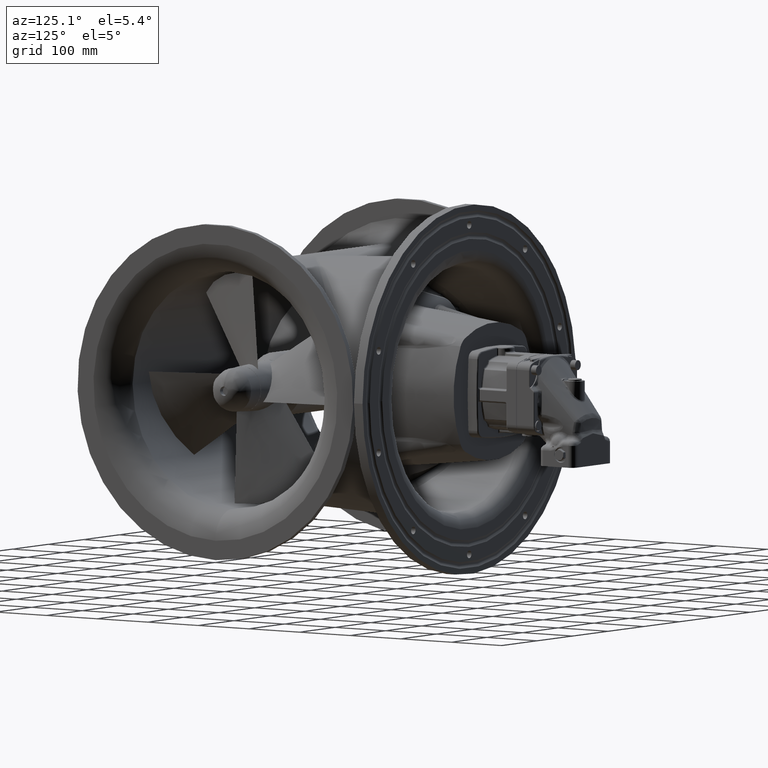
[diagram: clean part render]
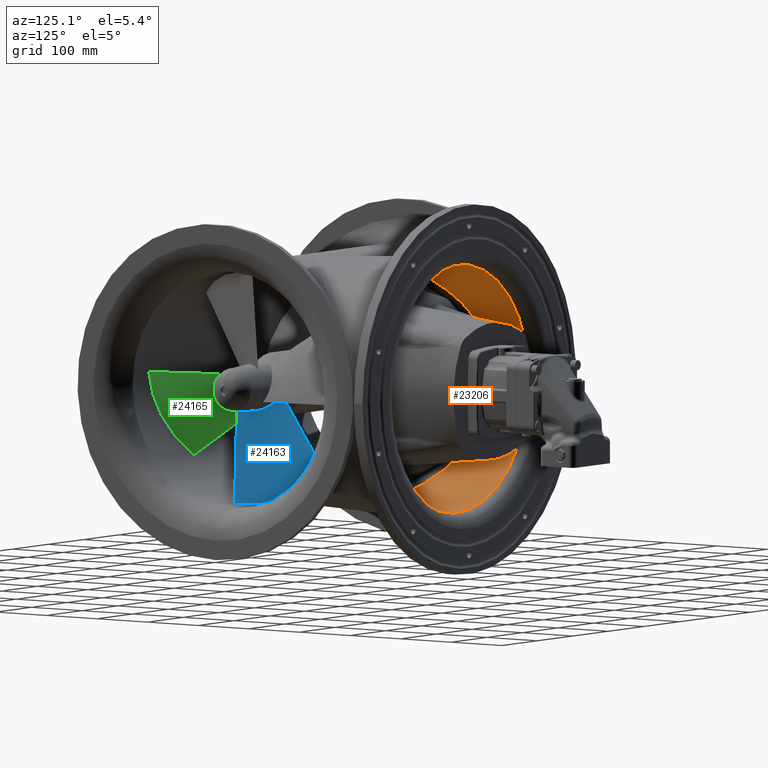
[diagram: same view with three faces highlighted in distinct colors, each labeled with its STEP entity id]
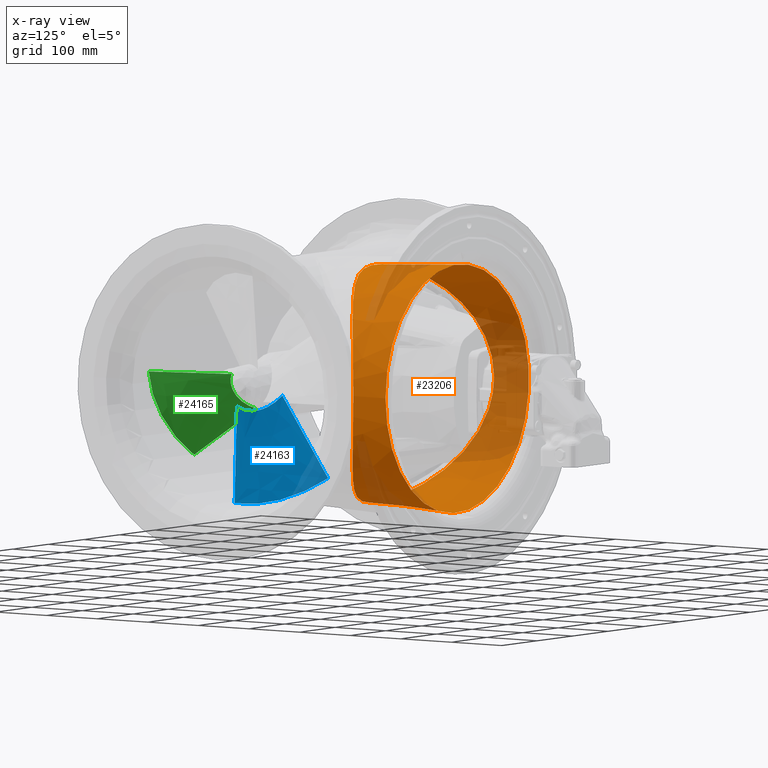
[diagram: x-ray of the same camera — body ghosted, the three highlighted faces saturated]
A machine part, auxiliary view with three faces highlighted in distinct colors.
The next image is the same camera in x-ray (body ghosted, the three faces saturated) — at least one of them is partly hidden behind the body in this view.
Their STEP definitions:

[orange] entity #23206 — the highlighted conical surface has half-angle 3 deg.
#540=CONICAL_SURFACE('',#24622,191.811582848917,3.00000000000001);
#1286=CIRCLE('',#24623,201.572524618308);
#4582=FACE_BOUND('',#6198,.T.);
#4782=FACE_OUTER_BOUND('',#6197,.T.);
#6197=EDGE_LOOP('',(#14754));
#6198=EDGE_LOOP('',(#14755));
#7785=B_SPLINE_CURVE_WITH_KNOTS('',3,(#32899,#32900,#32901,#32902,#32903,
#32904,#32905,#32906,#32907,#32908,#32909,#32910,#32911,#32912,#32913,#32914,
#32915,#32916,#32917,#32918,#32919,#32920,#32921,#32922,#32923,#32924,#32925,
#32926,#32927,#32928,#32929,#32930,#32931,#32932,#32933,#32934,#32935,#32936,
#32937,#32938,#32939,#32940,#32941,#32942,#32943,#32944,#32945,#32946,#32947,
#32948,#32949,#32950,#32951,#32952,#32953,#32954,#32955,#32956,#32957,#32958,
#32959,#32960,#32961,#32962,#32963,#32964,#32965,#32966,#32967,#32968,#32969,
#32970,#32971,#32972,#32973,#32974,#32975,#32976,#32977,#32978),
 .UNSPECIFIED.,.T.,.F.,(4,3,1,1,1,1,1,1,1,1,1,1,1,1,1,1,1,1,1,1,1,1,1,1,
1,1,1,1,1,1,1,1,1,1,1,1,1,1,1,1,1,1,1,1,1,1,1,1,1,1,1,1,1,1,1,1,1,1,1,1,
1,1,1,1,1,1,1,1,1,1,1,1,1,1,1,4),(0.,7.43685162452046E-7,0.0357150294075748,
0.044643600838178,0.0625007436993842,0.0714293151299872,0.0892864579911935,
0.107143600852399,0.111607886567701,0.125000743713606,0.142857886574812,
0.160715029436018,0.165179315151319,0.178572172297224,0.19642931515843,
0.205357886589034,0.207590029446684,0.214286458019637,0.232143600880843,
0.250000743742049,0.254465029457351,0.267857886603255,0.28125074374916,
0.285715029464461,0.309524553279403,0.318453124710006,0.333334077094344,
0.357143600909286,0.380953124724228,0.398810267585434,0.404762648539169,
0.41666741044664,0.428572172354111,0.434524553307846,0.452381696169053,
0.476191219983994,0.500000743798936,0.505953124752671,0.523810267613877,
0.539683283490505,0.563492807305447,0.57142931524376,0.591270585089545,
0.603175346997016,0.61111185493533,0.630953124781114,0.633929315257982,
0.642857886688585,0.666667410503527,0.678572172410998,0.687500743841601,
0.690476934318468,0.71428645813341,0.726191220040881,0.735119791471484,
0.738095981948351,0.750000743855822,0.761905505763293,0.76587375973245,
0.777778521639921,0.793651537516549,0.809524553393176,0.819445188316069,
0.825397569269804,0.841270585146432,0.857143601023059,0.861607886738361,
0.875000743884265,0.892857886745472,0.910715029606678,0.91517931532198,
0.928572172467884,0.946429315329091,0.964286458190297,0.9732150296209,1.),
 .UNSPECIFIED.);
#9110=VERTEX_POINT('',#32897);
#9111=VERTEX_POINT('',#32980);
#11299=EDGE_CURVE('',#9110,#9110,#7785,.T.);
#11300=EDGE_CURVE('',#9111,#9111,#1286,.T.);
#14754=ORIENTED_EDGE('',*,*,#11300,.F.);
#14755=ORIENTED_EDGE('',*,*,#11299,.F.);
#23206=ADVANCED_FACE('',(#4782,#4582),#540,.F.);
#24622=AXIS2_PLACEMENT_3D('',#32979,#26287,#26288);
#24623=AXIS2_PLACEMENT_3D('',#32981,#26289,#26290);
#26287=DIRECTION('center_axis',(-2.75075785414576E-15,1.,-2.09740053427586E-14));
#26288=DIRECTION('ref_axis',(1.,2.75075785414574E-15,-9.97823151778132E-16));
#26289=DIRECTION('center_axis',(2.75075785414576E-15,-1.,2.09740053427586E-14));
#26290=DIRECTION('ref_axis',(-1.,-2.75075785414574E-15,9.97823151778132E-16));
#32897=CARTESIAN_POINT('',(-817.642985206559,969.664118161604,286.230109982839));
#32899=CARTESIAN_POINT('Ctrl Pts',(-817.643844682859,969.664980324106,286.230111064114));
#32900=CARTESIAN_POINT('Ctrl Pts',(-817.643844473404,969.664980182692,286.230434766833));
#32901=CARTESIAN_POINT('Ctrl Pts',(-817.643844263211,969.664980040703,286.230758321049));
#32902=CARTESIAN_POINT('Ctrl Pts',(-817.643844052183,969.664979898074,286.231081875258));
#32903=CARTESIAN_POINT('Ctrl Pts',(-817.633709796106,969.658130348677,301.769253215617));
#32904=CARTESIAN_POINT('Ctrl Pts',(-815.20589328817,967.787715932101,321.158623087767));
#32905=CARTESIAN_POINT('Ctrl Pts',(-807.958859406134,962.300050276065,346.828023973494));
#32906=CARTESIAN_POINT('Ctrl Pts',(-802.633732048341,958.306054861071,360.801804739916));
#32907=CARTESIAN_POINT('Ctrl Pts',(-794.56969156171,952.347160960633,377.437296181785));
#32908=CARTESIAN_POINT('Ctrl Pts',(-785.283482143477,945.597138649173,392.993873515186));
#32909=CARTESIAN_POINT('Ctrl Pts',(-775.629738563046,938.791770010736,405.697136165923));
#32910=CARTESIAN_POINT('Ctrl Pts',(-766.366689567454,932.434825088465,416.308136549061));
#32911=CARTESIAN_POINT('Ctrl Pts',(-756.583187987238,925.868043859368,426.34071759135));
#32912=CARTESIAN_POINT('Ctrl Pts',(-742.061940164068,916.585702807428,438.667284938074));
#32913=CARTESIAN_POINT('Ctrl Pts',(-729.220800372485,908.982641043459,447.417231452489));
#32914=CARTESIAN_POINT('Ctrl Pts',(-717.177493672349,902.323395311271,454.50563443551));
#32915=CARTESIAN_POINT('Ctrl Pts',(-704.706445702908,895.831622607145,460.979050541048));
#32916=CARTESIAN_POINT('Ctrl Pts',(-689.812049234712,889.094956845852,467.033824201625));
#32917=CARTESIAN_POINT('Ctrl Pts',(-678.555195212731,884.863333117694,470.578394729946));
#32918=CARTESIAN_POINT('Ctrl Pts',(-671.467549321455,882.450832443353,472.548500787156));
#32919=CARTESIAN_POINT('Ctrl Pts',(-660.638257117636,879.077855095639,475.242985786774));
#32920=CARTESIAN_POINT('Ctrl Pts',(-642.827816410894,875.039117782348,478.282291958186));
#32921=CARTESIAN_POINT('Ctrl Pts',(-625.335768645027,873.663873336734,479.273882614572));
#32922=CARTESIAN_POINT('Ctrl Pts',(-609.769859913971,873.975378249653,479.048775962299));
#32923=CARTESIAN_POINT('Ctrl Pts',(-596.237274161791,875.291307659088,478.089208969909));
#32924=CARTESIAN_POINT('Ctrl Pts',(-583.030427720324,878.041010614917,476.022589592555));
#32925=CARTESIAN_POINT('Ctrl Pts',(-565.956968820594,882.698062326797,472.385444305861));
#32926=CARTESIAN_POINT('Ctrl Pts',(-551.372771790419,888.15860767349,467.905756807229));
#32927=CARTESIAN_POINT('Ctrl Pts',(-533.910852120543,896.134488382909,460.627875003736));
#32928=CARTESIAN_POINT('Ctrl Pts',(-517.187828881188,904.696619392375,452.232059295748));
#32929=CARTESIAN_POINT('Ctrl Pts',(-496.818080324273,916.617634993516,438.860859476696));
#32930=CARTESIAN_POINT('Ctrl Pts',(-477.797459389072,928.938074665806,422.130233627593));
#32931=CARTESIAN_POINT('Ctrl Pts',(-465.330665199626,937.494297195138,408.023778896989));
#32932=CARTESIAN_POINT('Ctrl Pts',(-456.716557521773,943.554836458041,396.666926650424));
#32933=CARTESIAN_POINT('Ctrl Pts',(-450.011286220799,948.354796715588,386.728983907229));
#32934=CARTESIAN_POINT('Ctrl Pts',(-444.021590381058,952.723578781273,376.217810270847));
#32935=CARTESIAN_POINT('Ctrl Pts',(-437.487271861231,957.541673057664,363.05934091721));
#32936=CARTESIAN_POINT('Ctrl Pts',(-429.971189098497,963.165560825805,344.438072919465));
#32937=CARTESIAN_POINT('Ctrl Pts',(-423.156089685744,968.35384896594,317.155209162421));
#32938=CARTESIAN_POINT('Ctrl Pts',(-421.237109067417,969.827184533132,293.852611333595));
#32939=CARTESIAN_POINT('Ctrl Pts',(-421.66148870774,969.501695484769,273.144680356409));
#32940=CARTESIAN_POINT('Ctrl Pts',(-423.42793124294,968.147867208054,255.961888753281));
#32941=CARTESIAN_POINT('Ctrl Pts',(-428.760082136487,964.08801254042,231.81147130288));
#32942=CARTESIAN_POINT('Ctrl Pts',(-435.678380679442,958.881225657245,212.938407477312));
#32943=CARTESIAN_POINT('Ctrl Pts',(-444.988754504355,952.005146534922,193.842358979803));
#32944=CARTESIAN_POINT('Ctrl Pts',(-453.316493525178,945.95596597474,180.055658676926));
#32945=CARTESIAN_POINT('Ctrl Pts',(-462.816657234918,939.25219329027,167.361263337286));
#32946=CARTESIAN_POINT('Ctrl Pts',(-472.948491499581,932.25948342167,155.425812976284));
#32947=CARTESIAN_POINT('Ctrl Pts',(-481.426320012417,926.599737960872,147.001877748782));
#32948=CARTESIAN_POINT('Ctrl Pts',(-490.763455426936,920.612893385691,138.905589423135));
#32949=CARTESIAN_POINT('Ctrl Pts',(-501.581289464626,913.830693471057,130.187886002035));
#32950=CARTESIAN_POINT('Ctrl Pts',(-516.147462385467,905.303118869695,120.624930451935));
#32951=CARTESIAN_POINT('Ctrl Pts',(-531.756087289806,897.225972352331,112.605848868821));
#32952=CARTESIAN_POINT('Ctrl Pts',(-540.386617938083,893.159542880494,108.827341735103));
#32953=CARTESIAN_POINT('Ctrl Pts',(-553.65837477105,887.302553040922,103.568723598515));
#32954=CARTESIAN_POINT('Ctrl Pts',(-568.929869970385,881.582538107448,98.8761642218715));
#32955=CARTESIAN_POINT('Ctrl Pts',(-587.493234825367,877.003246818053,95.3691919006624));
#32956=CARTESIAN_POINT('Ctrl Pts',(-597.643253154297,875.333071495202,94.1258727459474));
#32957=CARTESIAN_POINT('Ctrl Pts',(-607.913537997537,874.154476963815,93.2577800113576));
#32958=CARTESIAN_POINT('Ctrl Pts',(-619.579852023439,873.550442915569,92.8199338794796));
#32959=CARTESIAN_POINT('Ctrl Pts',(-631.679584340041,874.182332380331,93.2778106646304));
#32960=CARTESIAN_POINT('Ctrl Pts',(-643.64914854139,875.611856638499,94.3319618720475));
#32961=CARTESIAN_POINT('Ctrl Pts',(-657.125074690903,878.11315119999,96.2000365838047));
#32962=CARTESIAN_POINT('Ctrl Pts',(-674.930353892492,883.314343521894,100.266663119144));
#32963=CARTESIAN_POINT('Ctrl Pts',(-690.963382952051,889.617040853827,105.593325058543));
#32964=CARTESIAN_POINT('Ctrl Pts',(-702.611662374716,894.966501384886,110.485035175207));
#32965=CARTESIAN_POINT('Ctrl Pts',(-713.927295860927,900.568537828434,115.875758124346));
#32966=CARTESIAN_POINT('Ctrl Pts',(-726.808626285909,907.545867347812,123.081513032109));
#32967=CARTESIAN_POINT('Ctrl Pts',(-738.322592699047,914.388108483723,131.02068009718));
#32968=CARTESIAN_POINT('Ctrl Pts',(-748.61463336562,920.774324328005,139.071702811111));
#32969=CARTESIAN_POINT('Ctrl Pts',(-759.113109382784,927.529374842957,148.226753963432));
#32970=CARTESIAN_POINT('Ctrl Pts',(-772.425295666602,936.532124477699,162.252789384164));
#32971=CARTESIAN_POINT('Ctrl Pts',(-782.120839703791,943.3678231429,175.025821203128));
#32972=CARTESIAN_POINT('Ctrl Pts',(-789.964352243331,948.999660548333,187.025064016432));
#32973=CARTESIAN_POINT('Ctrl Pts',(-797.232707753047,954.29616258287,199.622050649147));
#32974=CARTESIAN_POINT('Ctrl Pts',(-805.675968206962,960.576246659162,218.402847837027));
#32975=CARTESIAN_POINT('Ctrl Pts',(-811.357575164055,964.869839434137,236.562646732096));
#32976=CARTESIAN_POINT('Ctrl Pts',(-816.218336782733,968.569356226686,259.027712656891));
#32977=CARTESIAN_POINT('Ctrl Pts',(-817.651385044264,969.670071204949,274.576805594849));
#32978=CARTESIAN_POINT('Ctrl Pts',(-817.643844682859,969.664980324106,286.230111064114));
#32979=CARTESIAN_POINT('Origin',(-619.546366145328,849.750030494023,286.088403940123));
#32980=CARTESIAN_POINT('',(-417.97384152702,1035.99989459673,286.088403940119));
#32981=CARTESIAN_POINT('Origin',(-619.546366145328,1035.99989459672,286.088403940119));

[blue] entity #24163 — the highlighted face is a freeform B-spline surface patch.
#685=B_SPLINE_SURFACE_WITH_KNOTS('',3,3,((#67933,#67934,#67935,#67936),
(#67937,#67938,#67939,#67940),(#67941,#67942,#67943,#67944),(#67945,#67946,
#67947,#67948),(#67949,#67950,#67951,#67952)),.UNSPECIFIED.,.F.,.F.,.F.,
(4,1,4),(4,4),(0.,0.428571428571429,1.),(0.215535311701015,0.95108317766332),
 .UNSPECIFIED.);
#5739=FACE_OUTER_BOUND('',#7274,.T.);
#7274=EDGE_LOOP('',(#19249,#19250,#19251,#19252));
#8761=B_SPLINE_CURVE_WITH_KNOTS('',3,(#67858,#67859,#67860,#67861,#67862,
#67863,#67864,#67865,#67866,#67867),.UNSPECIFIED.,.F.,.F.,(4,2,2,2,4),(-16.3493618689349,
-10.7212147444645,-8.17473811777873,-4.9042900668038,0.),.UNSPECIFIED.);
#8767=B_SPLINE_CURVE_WITH_KNOTS('',3,(#67954,#67955,#67956,#67957),
 .UNSPECIFIED.,.F.,.F.,(4,4),(0.217337775537616,0.82039902234064),
 .UNSPECIFIED.);
#8768=B_SPLINE_CURVE_WITH_KNOTS('',3,(#67959,#67960,#67961,#67962,#67963,
#67964,#67965,#67966,#67967,#67968,#67969,#67970),.UNSPECIFIED.,.F.,.F.,
(4,2,2,2,2,4),(-8.36856113491337,-6.27827251098502,-4.18522516089081,-2.22822413412282,
-1.10880428487229,0.),.UNSPECIFIED.);
#8769=B_SPLINE_CURVE_WITH_KNOTS('',3,(#67971,#67972,#67973,#67974),
 .UNSPECIFIED.,.F.,.F.,(4,4),(0.215535311701024,0.828324193697466),
 .UNSPECIFIED.);
#10491=VERTEX_POINT('',#67846);
#10492=VERTEX_POINT('',#67847);
#10497=VERTEX_POINT('',#67953);
#10498=VERTEX_POINT('',#67958);
#13545=EDGE_CURVE('',#10492,#10491,#8761,.T.);
#13551=EDGE_CURVE('',#10497,#10492,#8767,.T.);
#13552=EDGE_CURVE('',#10497,#10498,#8768,.T.);
#13553=EDGE_CURVE('',#10498,#10491,#8769,.T.);
#19249=ORIENTED_EDGE('',*,*,#13545,.F.);
#19250=ORIENTED_EDGE('',*,*,#13551,.F.);
#19251=ORIENTED_EDGE('',*,*,#13552,.T.);
#19252=ORIENTED_EDGE('',*,*,#13553,.T.);
#24163=ADVANCED_FACE('',(#5739),#685,.T.);
#67846=CARTESIAN_POINT('',(-423.51643087486,733.7071333461,98.9125769727102));
#67847=CARTESIAN_POINT('',(-489.946725566427,871.819283637717,141.807246706798));
#67858=CARTESIAN_POINT('Ctrl Pts',(-489.946725566427,871.819283637716,141.807246706798));
#67859=CARTESIAN_POINT('Ctrl Pts',(-479.439231465051,859.889433830214,131.841438035652));
#67860=CARTESIAN_POINT('Ctrl Pts',(-469.998474413698,846.220111269411,122.956716477875));
#67861=CARTESIAN_POINT('Ctrl Pts',(-457.562934255208,824.237680965381,112.652395209093));
#67862=CARTESIAN_POINT('Ctrl Pts',(-453.88588904403,817.113041284964,109.817053026394));
#67863=CARTESIAN_POINT('Ctrl Pts',(-445.930665670431,800.28686595135,104.312368622695));
#67864=CARTESIAN_POINT('Ctrl Pts',(-441.791587787326,790.456329810536,101.928703624345));
#67865=CARTESIAN_POINT('Ctrl Pts',(-432.315822506446,765.189703467371,97.9761079528533));
#67866=CARTESIAN_POINT('Ctrl Pts',(-427.443934927138,749.506398168218,97.4283041266339));
#67867=CARTESIAN_POINT('Ctrl Pts',(-423.51643087486,733.7071333461,98.9125769727105));
#67933=CARTESIAN_POINT('Ctrl Pts',(-479.308207211856,788.664153539926,272.641411837788));
#67934=CARTESIAN_POINT('Ctrl Pts',(-482.634700860429,814.826788882129,231.194886438855));
#67935=CARTESIAN_POINT('Ctrl Pts',(-490.077751864443,872.49237141663,141.363719456502));
#67936=CARTESIAN_POINT('Ctrl Pts',(-490.993069025535,880.202897630307,128.257357953734));
#67937=CARTESIAN_POINT('Ctrl Pts',(-470.906524474224,782.128401093587,270.676699124686));
#67938=CARTESIAN_POINT('Ctrl Pts',(-472.840794204752,804.709856948901,228.153635266937));
#67939=CARTESIAN_POINT('Ctrl Pts',(-477.168946856875,854.363031462063,135.913858100625));
#67940=CARTESIAN_POINT('Ctrl Pts',(-477.701180032577,861.088161223018,122.511276544542));
#67941=CARTESIAN_POINT('Ctrl Pts',(-452.988015053744,764.7254280547,265.445190946248));
#67942=CARTESIAN_POINT('Ctrl Pts',(-452.133586896028,778.963971603625,220.414164002805));
#67943=CARTESIAN_POINT('Ctrl Pts',(-450.222597726274,809.948484223265,122.562399898502));
#67944=CARTESIAN_POINT('Ctrl Pts',(-449.987493487907,814.377980318784,108.469727846468));
#67945=CARTESIAN_POINT('Ctrl Pts',(-440.148090152414,743.26629982072,258.994361848981));
#67946=CARTESIAN_POINT('Ctrl Pts',(-437.441364290855,749.224222197516,211.474097159335));
#67947=CARTESIAN_POINT('Ctrl Pts',(-431.382530649037,761.683866233081,108.053571827538));
#67948=CARTESIAN_POINT('Ctrl Pts',(-430.637748637348,763.8348686761,93.2759617392885));
#67949=CARTESIAN_POINT('Ctrl Pts',(-434.822085440606,730.215685057502,255.071216205138));
#67950=CARTESIAN_POINT('Ctrl Pts',(-431.317321854943,731.456999533852,206.133091891707));
#67951=CARTESIAN_POINT('Ctrl Pts',(-423.475390716343,733.360965817716,99.5394239960745));
#67952=CARTESIAN_POINT('Ctrl Pts',(-422.511020843908,734.21414760947,84.3716760080494));
#67953=CARTESIAN_POINT('',(-479.332735984193,788.857054882782,272.335847260713));
#67954=CARTESIAN_POINT('Ctrl Pts',(-479.332735984193,788.857054882782,272.335847260713));
#67955=CARTESIAN_POINT('Ctrl Pts',(-482.076551702042,810.43347110335,238.160849983891));
#67956=CARTESIAN_POINT('Ctrl Pts',(-487.569999224809,853.052107331895,171.667597942183));
#67957=CARTESIAN_POINT('Ctrl Pts',(-489.946725566427,871.819283637717,141.807246706798));
#67958=CARTESIAN_POINT('',(-434.822085440606,730.215685057502,255.071216205137));
#67959=CARTESIAN_POINT('Ctrl Pts',(-479.332735984193,788.857054882783,272.335847260712));
#67960=CARTESIAN_POINT('Ctrl Pts',(-474.359536698134,786.882683294624,267.756508837918));
#67961=CARTESIAN_POINT('Ctrl Pts',(-469.701121738859,783.997981310705,263.355066326695));
#67962=CARTESIAN_POINT('Ctrl Pts',(-460.733963362531,776.297022379442,255.727825804254));
#67963=CARTESIAN_POINT('Ctrl Pts',(-456.532498003333,771.560526564897,252.585965801879));
#67964=CARTESIAN_POINT('Ctrl Pts',(-448.981116738292,760.996256872411,248.643974972256));
#67965=CARTESIAN_POINT('Ctrl Pts',(-445.667201895248,755.35814158914,247.747235890063));
#67966=CARTESIAN_POINT('Ctrl Pts',(-441.097119491482,746.186608978067,248.432276336347));
#67967=CARTESIAN_POINT('Ctrl Pts',(-439.587721332745,742.825672933567,249.116731435007));
#67968=CARTESIAN_POINT('Ctrl Pts',(-436.920814833486,736.28220966963,251.422023957388));
#67969=CARTESIAN_POINT('Ctrl Pts',(-435.776595063234,733.13853094165,253.020264012303));
#67970=CARTESIAN_POINT('Ctrl Pts',(-434.822085440606,730.215685057502,255.071216205136));
#67971=CARTESIAN_POINT('Ctrl Pts',(-434.822085440606,730.215685057502,255.071216205137));
#67972=CARTESIAN_POINT('Ctrl Pts',(-431.902248053122,731.249830821997,214.30060171114));
#67973=CARTESIAN_POINT('Ctrl Pts',(-425.972136338266,732.743899727529,133.51331722276));
#67974=CARTESIAN_POINT('Ctrl Pts',(-423.51643087486,733.7071333461,98.9125769727102));

[green] entity #24165 — the highlighted face is a freeform B-spline surface patch.
#687=B_SPLINE_SURFACE_WITH_KNOTS('',3,3,((#68017,#68018,#68019,#68020),
(#68021,#68022,#68023,#68024),(#68025,#68026,#68027,#68028),(#68029,#68030,
#68031,#68032),(#68033,#68034,#68035,#68036)),.UNSPECIFIED.,.F.,.F.,.F.,
(4,1,4),(4,4),(0.,0.428571428571429,1.),(0.215535311701015,0.951083177663321),
 .UNSPECIFIED.);
#5741=FACE_OUTER_BOUND('',#7276,.T.);
#7276=EDGE_LOOP('',(#19257,#19258,#19259,#19260));
#8758=B_SPLINE_CURVE_WITH_KNOTS('',3,(#67825,#67826,#67827,#67828,#67829,
#67830,#67831,#67832,#67833,#67834),.UNSPECIFIED.,.F.,.F.,(4,2,2,2,4),(-16.3493622124159,
-10.7212150805599,-8.17473828554997,-4.90429085816191,0.),.UNSPECIFIED.);
#8764=B_SPLINE_CURVE_WITH_KNOTS('',3,(#67912,#67913,#67914,#67915),
 .UNSPECIFIED.,.F.,.F.,(4,4),(0.215535311701024,0.828324193697466),
 .UNSPECIFIED.);
#8766=B_SPLINE_CURVE_WITH_KNOTS('',3,(#67929,#67930,#67931,#67932),
 .UNSPECIFIED.,.F.,.F.,(4,4),(0.217337775537616,0.82039902234064),
 .UNSPECIFIED.);
#8773=B_SPLINE_CURVE_WITH_KNOTS('',3,(#68037,#68038,#68039,#68040,#68041,
#68042,#68043,#68044,#68045,#68046,#68047,#68048),.UNSPECIFIED.,.F.,.F.,
(4,2,2,2,2,4),(-8.36855874052954,-6.2785885417455,-4.18550039144612,-2.2284566407156,
-1.10891951850015,0.),.UNSPECIFIED.);
#10489=VERTEX_POINT('',#67823);
#10490=VERTEX_POINT('',#67824);
#10495=VERTEX_POINT('',#67911);
#10496=VERTEX_POINT('',#67916);
#13542=EDGE_CURVE('',#10489,#10490,#8758,.T.);
#13548=EDGE_CURVE('',#10495,#10490,#8764,.T.);
#13550=EDGE_CURVE('',#10496,#10489,#8766,.T.);
#13557=EDGE_CURVE('',#10496,#10495,#8773,.T.);
#19257=ORIENTED_EDGE('',*,*,#13542,.F.);
#19258=ORIENTED_EDGE('',*,*,#13550,.F.);
#19259=ORIENTED_EDGE('',*,*,#13557,.T.);
#19260=ORIENTED_EDGE('',*,*,#13548,.T.);
#24165=ADVANCED_FACE('',(#5741),#687,.T.);
#67823=CARTESIAN_POINT('',(-489.946725566427,607.010338457327,165.560615993062));
#67824=CARTESIAN_POINT('',(-423.51643087486,564.11566872324,303.672766284678));
#67825=CARTESIAN_POINT('Ctrl Pts',(-489.946725566426,607.010338457328,165.560615993063));
#67826=CARTESIAN_POINT('Ctrl Pts',(-479.439230786765,597.044529142864,177.490466570667));
#67827=CARTESIAN_POINT('Ctrl Pts',(-469.998470603629,588.159808959286,191.159787306773));
#67828=CARTESIAN_POINT('Ctrl Pts',(-457.562928109111,577.855487906001,213.142216418157));
#67829=CARTESIAN_POINT('Ctrl Pts',(-453.885882615247,575.020145682721,220.266855864408));
#67830=CARTESIAN_POINT('Ctrl Pts',(-445.9306605053,569.515461543947,237.093029731845));
#67831=CARTESIAN_POINT('Ctrl Pts',(-441.791584466062,567.131796705122,246.92356402667));
#67832=CARTESIAN_POINT('Ctrl Pts',(-432.315821658467,563.179199846972,272.190191181799));
#67833=CARTESIAN_POINT('Ctrl Pts',(-427.443935560882,562.631395637661,287.873498913185));
#67834=CARTESIAN_POINT('Ctrl Pts',(-423.51643087486,564.115668723241,303.672766284678));
#67911=CARTESIAN_POINT('',(-434.822085440606,720.274307955666,307.164214573277));
#67912=CARTESIAN_POINT('Ctrl Pts',(-434.822085440606,720.274307955666,307.164214573277));
#67913=CARTESIAN_POINT('Ctrl Pts',(-431.902248053122,679.503693461669,306.130068808781));
#67914=CARTESIAN_POINT('Ctrl Pts',(-425.972136338266,598.71640897329,304.635999903249));
#67915=CARTESIAN_POINT('Ctrl Pts',(-423.51643087486,564.11566872324,303.672766284678));
#67916=CARTESIAN_POINT('',(-479.332735984193,737.538939011243,248.522844747997));
#67929=CARTESIAN_POINT('Ctrl Pts',(-479.332735984193,737.538939011243,248.522844747997));
#67930=CARTESIAN_POINT('Ctrl Pts',(-482.076551702042,703.363941734421,226.946428527429));
#67931=CARTESIAN_POINT('Ctrl Pts',(-487.569999224809,636.870689692712,184.327792298883));
#67932=CARTESIAN_POINT('Ctrl Pts',(-489.946725566427,607.010338457327,165.560615993062));
#68017=CARTESIAN_POINT('Ctrl Pts',(-479.308207211856,737.844503588317,248.715746090853));
#68018=CARTESIAN_POINT('Ctrl Pts',(-482.634700860429,696.397978189385,222.55311074865));
#68019=CARTESIAN_POINT('Ctrl Pts',(-490.077751864443,606.566811207032,164.887528214148));
#68020=CARTESIAN_POINT('Ctrl Pts',(-490.993069025535,593.460449704264,157.177002000472));
#68021=CARTESIAN_POINT('Ctrl Pts',(-470.906524474224,735.879790875216,255.251498537191));
#68022=CARTESIAN_POINT('Ctrl Pts',(-472.840794204752,693.356727017466,232.670042681878));
#68023=CARTESIAN_POINT('Ctrl Pts',(-477.168946856875,601.116949851155,183.016868168716));
#68024=CARTESIAN_POINT('Ctrl Pts',(-477.701180032577,587.714368295072,176.29173840776));
#68025=CARTESIAN_POINT('Ctrl Pts',(-452.98799427249,730.648287298177,272.654456269207));
#68026=CARTESIAN_POINT('Ctrl Pts',(-452.133566114775,685.617260354733,258.415912720282));
#68027=CARTESIAN_POINT('Ctrl Pts',(-450.222585209163,587.765493203514,227.43141023642));
#68028=CARTESIAN_POINT('Ctrl Pts',(-449.987480970797,573.67282115148,223.0019141409));
#68029=CARTESIAN_POINT('Ctrl Pts',(-440.148090152414,724.19745359951,294.113599810059));
#68030=CARTESIAN_POINT('Ctrl Pts',(-437.441364290855,676.677188909865,288.155677433263));
#68031=CARTESIAN_POINT('Ctrl Pts',(-431.382530649037,573.256663578068,275.696033397698));
#68032=CARTESIAN_POINT('Ctrl Pts',(-430.637748637348,558.479053489818,273.545030954678));
#68033=CARTESIAN_POINT('Ctrl Pts',(-434.822085440606,720.274307955668,307.164214573277));
#68034=CARTESIAN_POINT('Ctrl Pts',(-431.317321854942,671.336183642237,305.922900096926));
#68035=CARTESIAN_POINT('Ctrl Pts',(-423.475390716343,564.742515746604,304.018933813062));
#68036=CARTESIAN_POINT('Ctrl Pts',(-422.511020843908,549.574767758579,303.165752021308));
#68037=CARTESIAN_POINT('Ctrl Pts',(-479.332735984193,737.538939011242,248.522844747997));
#68038=CARTESIAN_POINT('Ctrl Pts',(-474.360296530625,732.960300244731,250.496914680903));
#68039=CARTESIAN_POINT('Ctrl Pts',(-469.702535934057,728.559496005661,253.381038677541));
#68040=CARTESIAN_POINT('Ctrl Pts',(-460.73581465136,720.932375370818,261.080935286983));
#68041=CARTESIAN_POINT('Ctrl Pts',(-456.534187710074,717.790200111438,265.817286547359));
#68042=CARTESIAN_POINT('Ctrl Pts',(-448.982474603066,713.847549065602,276.381443177461));
#68043=CARTESIAN_POINT('Ctrl Pts',(-445.668395284128,712.950479651002,282.019582333546));
#68044=CARTESIAN_POINT('Ctrl Pts',(-441.097912001689,713.635059077357,291.191553022037));
#68045=CARTESIAN_POINT('Ctrl Pts',(-439.588306626229,714.319441728728,294.552852565514));
#68046=CARTESIAN_POINT('Ctrl Pts',(-436.921051299465,716.6247848311,301.097038643692));
#68047=CARTESIAN_POINT('Ctrl Pts',(-435.776694261631,718.223142615514,304.241064929358));
#68048=CARTESIAN_POINT('Ctrl Pts',(-434.822085440606,720.274307955667,307.164214573276));